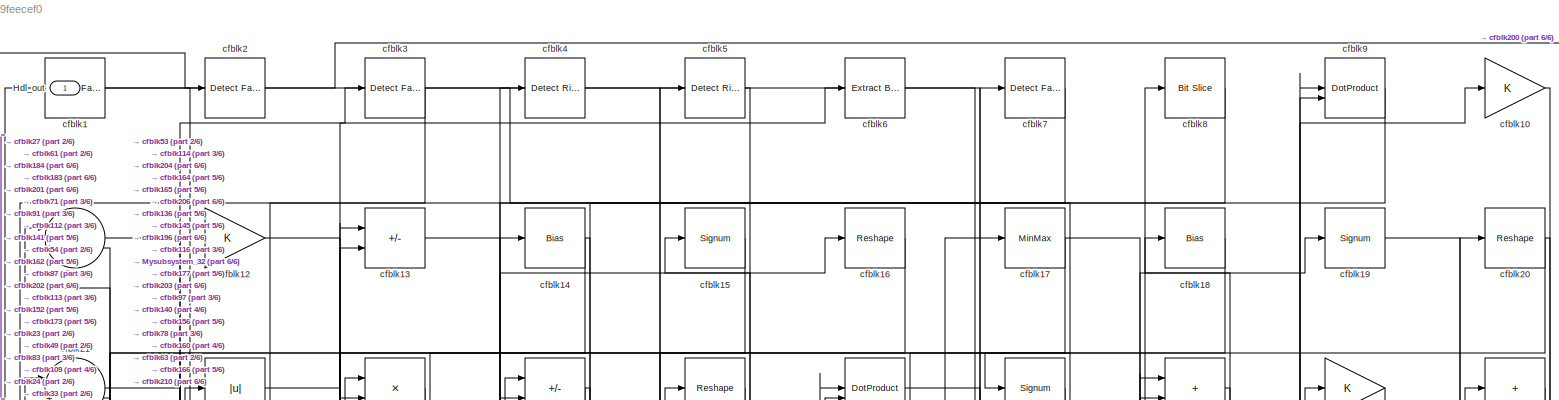
[diagram: root canvas - part 1/6, full width, top band]
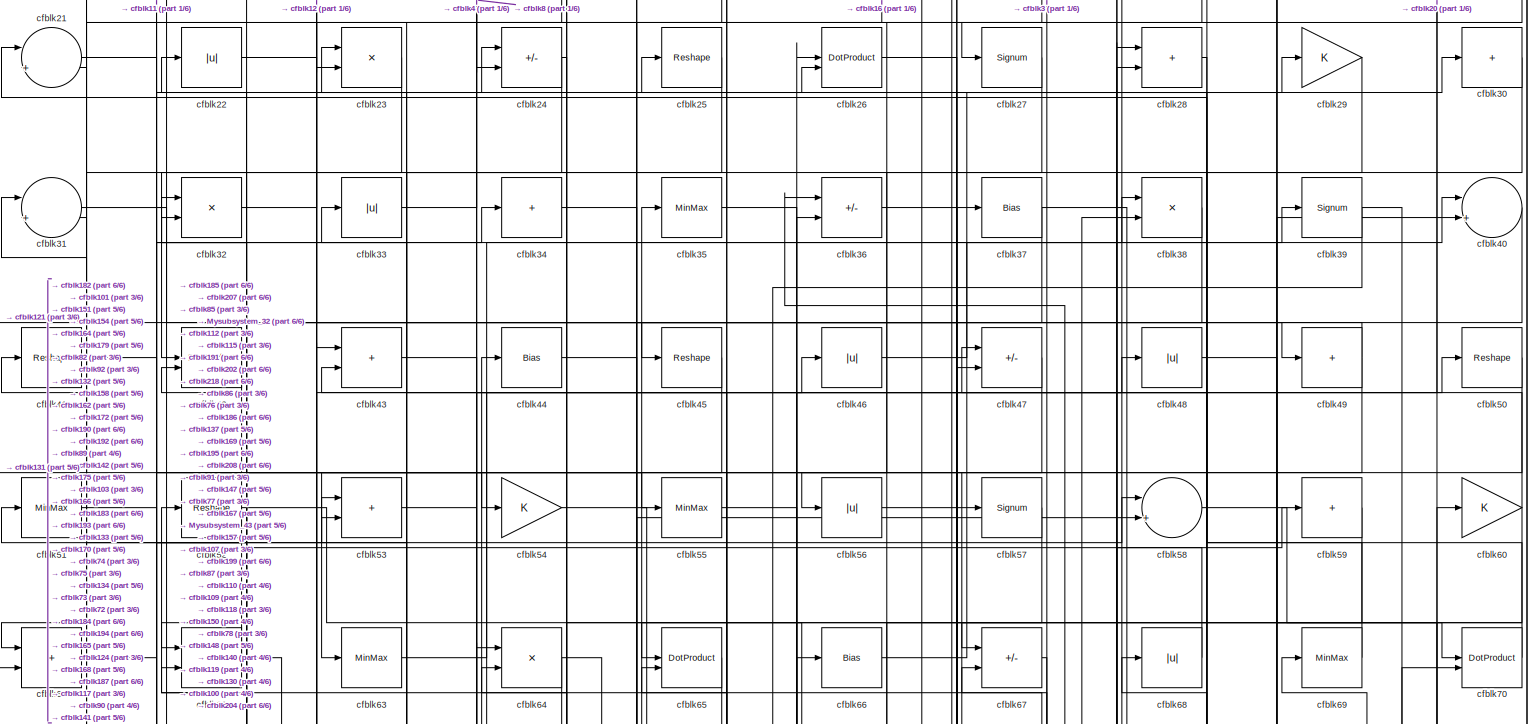
[diagram: root canvas - part 2/6, full width, top band]
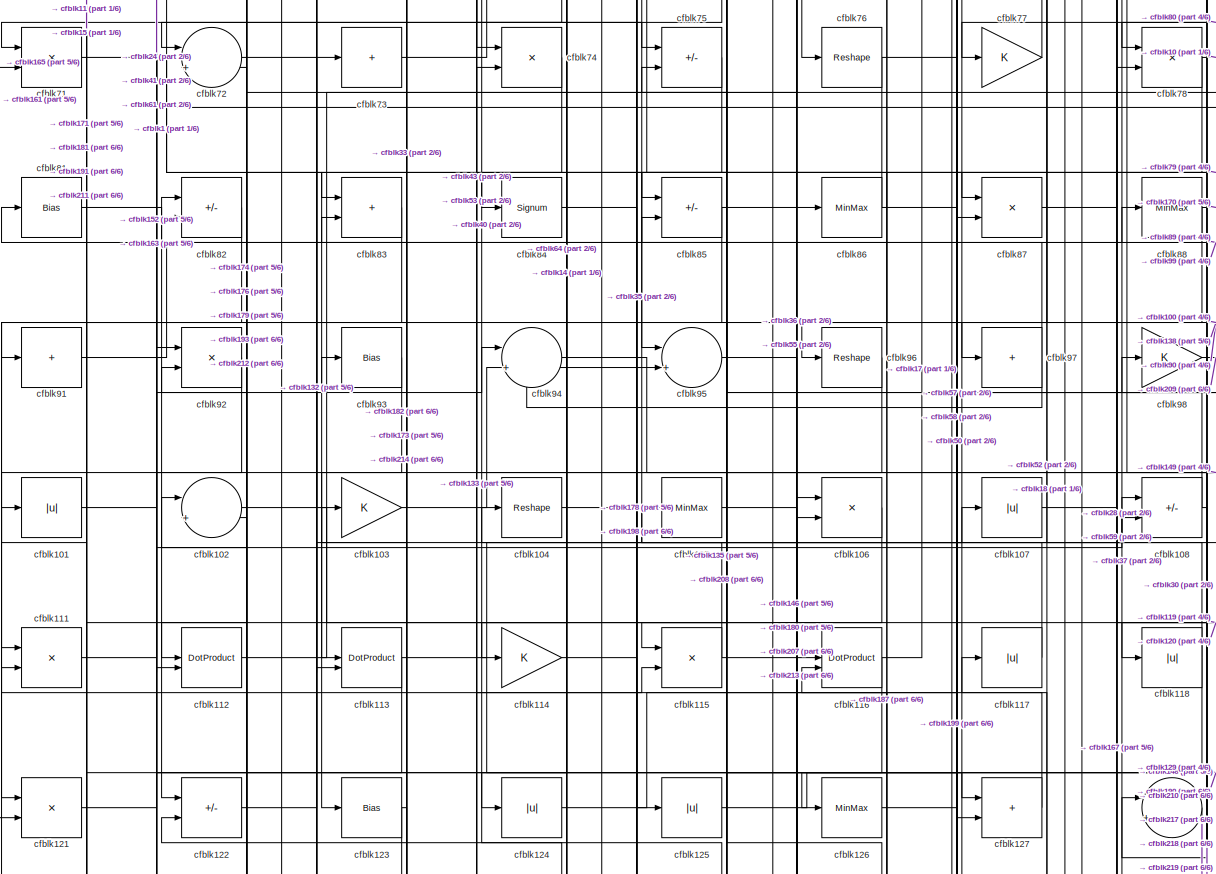
[diagram: root canvas - part 3/6, full width, middle band]
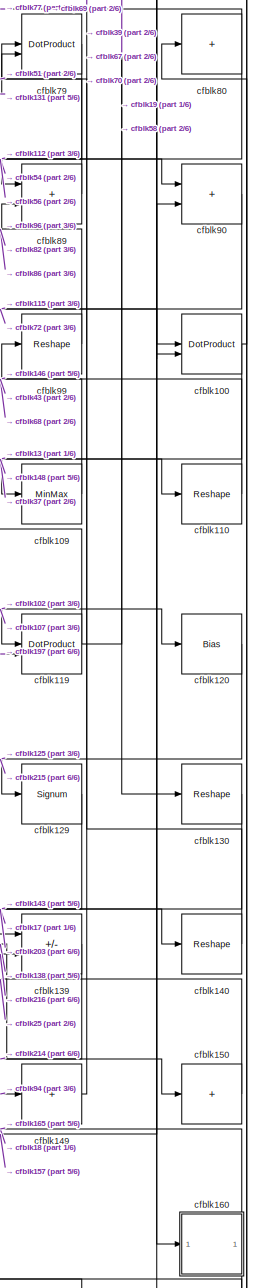
[diagram: root canvas - part 4/6, middle right region]
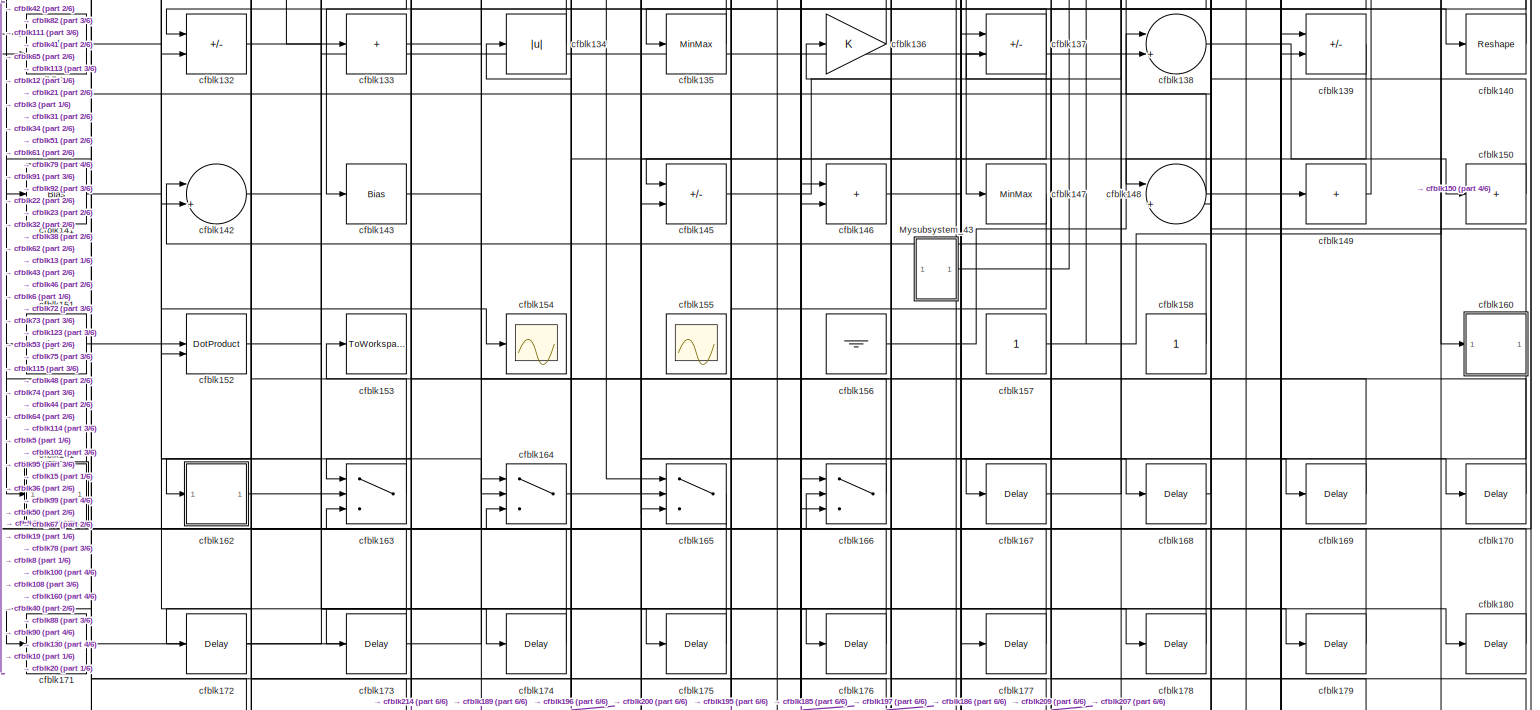
[diagram: root canvas - part 5/6, full width, bottom band]
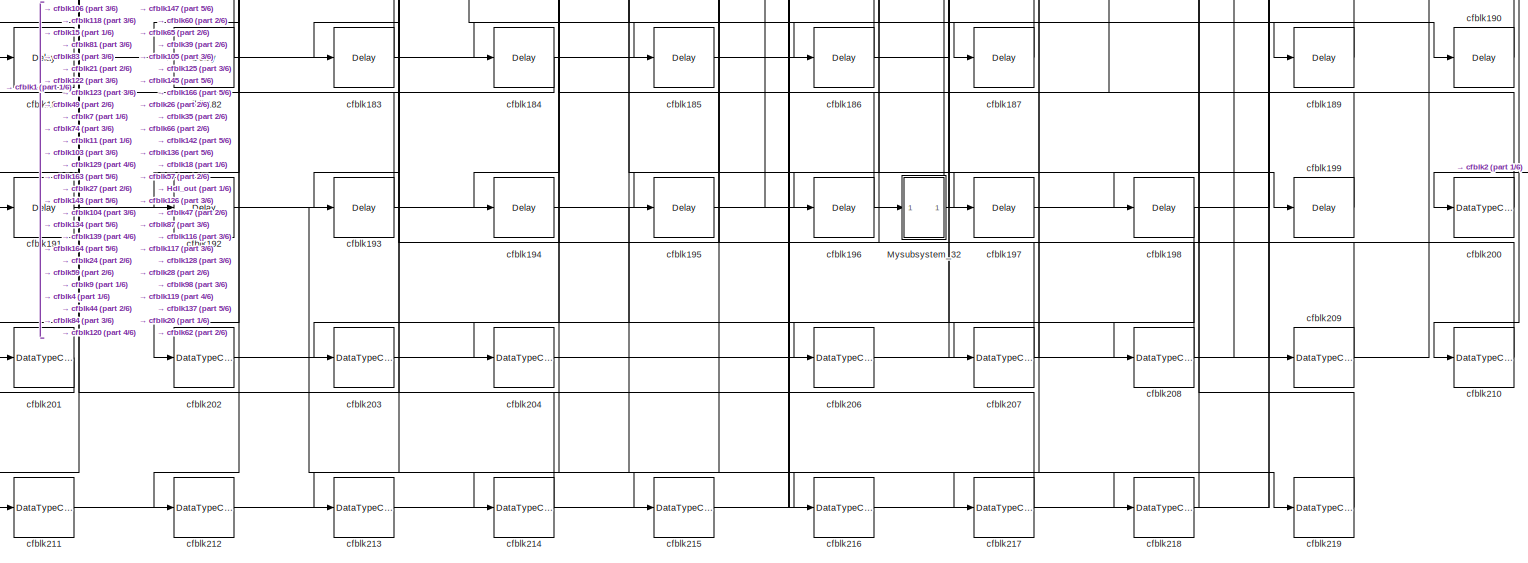
[diagram: root canvas - part 6/6, full width, bottom band]
MODEL slx_e0aa9feecef0
KIND model
CONFIG AbsTol = auto
CONFIG EnableMultiTasking = off
CONFIG FixedStep = auto
CONFIG MaxStep = auto
CONFIG MinStep = auto
CONFIG RelTol = 1e-3
CONFIG SampleTimeConstraint = Unconstrained
CONFIG SolverName = VariableStepAuto
CONFIG StartTime = 0.0
CONFIG StopTime = 10.0
BLOCK [Outport] Hdl_out
  OutDataTypeStr = uint8
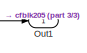
[diagram: Mysubsystem_32 - part 1/3, top right region]
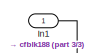
[diagram: Mysubsystem_32 - part 2/3, top right region]
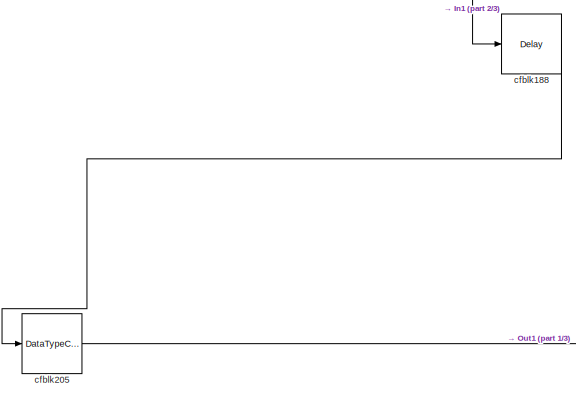
[diagram: Mysubsystem_32 - part 3/3, full width, bottom band]
BLOCK [SubSystem] Mysubsystem_32
  RTWFcnName = Mysubsystem_32
  RTWFcnNameOpts = User specified
  RTWFileNameOpts = Use function name
  RTWSystemCode = Reusable function
  TreatAsAtomicUnit = on
BLOCK [Inport] Mysubsystem_32/In1
BLOCK [Outport] Mysubsystem_32/Out1
BLOCK [Delay] Mysubsystem_32/cfblk188
  InputPortMap = u0
  SampleTime = 1
BLOCK [DataTypeConversion] Mysubsystem_32/cfblk205
  OutDataTypeStr = uint8
  RndMeth = Floor
  SaturateOnIntegerOverflow = off
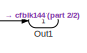
[diagram: Mysubsystem_43 - part 1/2, top center region]
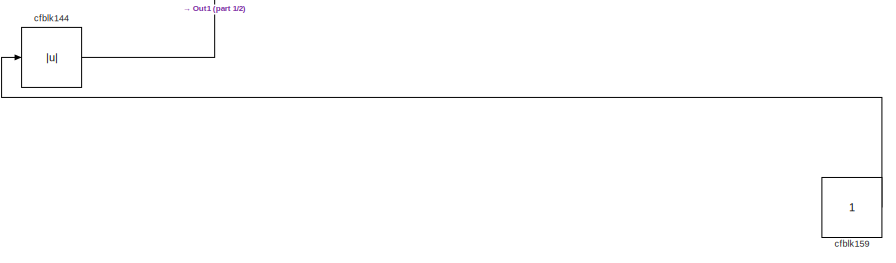
[diagram: Mysubsystem_43 - part 2/2, full width, bottom band]
BLOCK [SubSystem] Mysubsystem_43
  RTWFcnName = Mysubsystem_43
  RTWFcnNameOpts = User specified
  RTWFileNameOpts = Use function name
  RTWSystemCode = Reusable function
  TreatAsAtomicUnit = on
BLOCK [Outport] Mysubsystem_43/Out1
BLOCK [Abs] Mysubsystem_43/cfblk144
  SaturateOnIntegerOverflow = off
BLOCK [Constant] Mysubsystem_43/cfblk159
  SampleTime = -1
BLOCK [Reference] cfblk1  REF=hdlsllib/Logic and Bit
Operations/Detect Fall
Nonpositive
  SourceBlock = hdlsllib/Logic and Bit\nOperations/Detect Fall\nNonpositive
  SourceType = Detect Fall Nonpositive
BLOCK [Gain] cfblk10
  OutDataTypeStr = uint8
BLOCK [DotProduct] cfblk100
  OutDataTypeStr = uint8
BLOCK [Abs] cfblk101
  OutDataTypeStr = uint8
  SaturateOnIntegerOverflow = off
BLOCK [Sum] cfblk102
  Inputs = |++
  OutDataTypeStr = uint8
BLOCK [Gain] cfblk103
  OutDataTypeStr = uint8
BLOCK [Reshape] cfblk104
BLOCK [MinMax] cfblk105
  OutDataTypeStr = uint8
BLOCK [Product] cfblk106
  Inputs = */
  OutDataTypeStr = uint8
  RndMeth = Zero
  SaturateOnIntegerOverflow = on
BLOCK [Abs] cfblk107
  OutDataTypeStr = uint8
  SaturateOnIntegerOverflow = off
BLOCK [Sum] cfblk108
  IconShape = rectangular
  Inputs = +-
  OutDataTypeStr = uint8
BLOCK [MinMax] cfblk109
  OutDataTypeStr = uint8
BLOCK [Sum] cfblk11
  Inputs = |++
  OutDataTypeStr = uint8
BLOCK [Reshape] cfblk110
BLOCK [Product] cfblk111
  Inputs = */
  OutDataTypeStr = uint8
  RndMeth = Zero
  SaturateOnIntegerOverflow = on
BLOCK [DotProduct] cfblk112
  OutDataTypeStr = uint8
BLOCK [DotProduct] cfblk113
  OutDataTypeStr = uint8
BLOCK [Gain] cfblk114
  OutDataTypeStr = uint8
BLOCK [Product] cfblk115
  Inputs = */
  OutDataTypeStr = uint8
  RndMeth = Zero
  SaturateOnIntegerOverflow = on
BLOCK [DotProduct] cfblk116
  OutDataTypeStr = uint8
BLOCK [Abs] cfblk117
  OutDataTypeStr = uint8
  SaturateOnIntegerOverflow = off
BLOCK [Abs] cfblk118
  OutDataTypeStr = uint8
  SaturateOnIntegerOverflow = off
BLOCK [DotProduct] cfblk119
  OutDataTypeStr = uint8
BLOCK [Gain] cfblk12
  OutDataTypeStr = uint8
BLOCK [Bias] cfblk120
  Bias = 0.0
  SaturateOnIntegerOverflow = off
BLOCK [Product] cfblk121
  Inputs = */
  OutDataTypeStr = uint8
  RndMeth = Zero
  SaturateOnIntegerOverflow = on
BLOCK [Sum] cfblk122
  IconShape = rectangular
  Inputs = +-
  OutDataTypeStr = uint8
BLOCK [Bias] cfblk123
  Bias = 0.0
  SaturateOnIntegerOverflow = off
BLOCK [Abs] cfblk124
  OutDataTypeStr = uint8
  SaturateOnIntegerOverflow = off
BLOCK [Abs] cfblk125
  OutDataTypeStr = uint8
  SaturateOnIntegerOverflow = off
BLOCK [MinMax] cfblk126
  OutDataTypeStr = uint8
BLOCK [Sum] cfblk127
  IconShape = rectangular
  OutDataTypeStr = uint8
BLOCK [Sum] cfblk128
  Inputs = |++
  OutDataTypeStr = uint8
BLOCK [Signum] cfblk129
BLOCK [Sum] cfblk13
  IconShape = rectangular
  Inputs = +-
  OutDataTypeStr = uint8
BLOCK [Reshape] cfblk130
BLOCK [Sum] cfblk131
  IconShape = rectangular
  Inputs = +-
  OutDataTypeStr = uint8
BLOCK [Sum] cfblk132
  IconShape = rectangular
  Inputs = +-
  OutDataTypeStr = uint8
BLOCK [Sum] cfblk133
  IconShape = rectangular
  Inputs = +
  OutDataTypeStr = uint8
BLOCK [Abs] cfblk134
  OutDataTypeStr = uint8
  SaturateOnIntegerOverflow = off
BLOCK [MinMax] cfblk135
  OutDataTypeStr = uint8
BLOCK [Gain] cfblk136
  OutDataTypeStr = uint8
BLOCK [Sum] cfblk137
  IconShape = rectangular
  Inputs = +-
  OutDataTypeStr = uint8
BLOCK [Sum] cfblk138
  Inputs = |++
  OutDataTypeStr = uint8
BLOCK [Sum] cfblk139
  IconShape = rectangular
  Inputs = +-
  OutDataTypeStr = uint8
BLOCK [Bias] cfblk14
  Bias = 0.0
  SaturateOnIntegerOverflow = off
BLOCK [Reshape] cfblk140
BLOCK [Bias] cfblk141
  Bias = 0.0
  SaturateOnIntegerOverflow = off
BLOCK [Sum] cfblk142
  Inputs = |++
  OutDataTypeStr = uint8
BLOCK [Bias] cfblk143
  Bias = 0.0
  SaturateOnIntegerOverflow = off
BLOCK [Sum] cfblk145
  IconShape = rectangular
  Inputs = +-
  OutDataTypeStr = uint8
BLOCK [Sum] cfblk146
  IconShape = rectangular
  OutDataTypeStr = uint8
BLOCK [MinMax] cfblk147
  OutDataTypeStr = uint8
BLOCK [Sum] cfblk148
  Inputs = |++
  OutDataTypeStr = uint8
BLOCK [Sum] cfblk149
  IconShape = rectangular
  Inputs = +
  OutDataTypeStr = uint8
BLOCK [Signum] cfblk15
BLOCK [Sum] cfblk150
  IconShape = rectangular
  Inputs = +
  OutDataTypeStr = uint8
BLOCK [Signum] cfblk151
BLOCK [DotProduct] cfblk152
  OutDataTypeStr = uint8
BLOCK [ToWorkspace] cfblk153
  MaxDataPoints = inf
  SampleTime = -1
  SaveFormat = Timeseries
  VariableName = simout
BLOCK [Scope] cfblk154
  Floating = off
  NumInputPorts = 1
  ScopeSpecificationString = Simulink.scopes.TimeScopeBlockCfg('CurrentConfiguration', extmgr.ConfigurationSet(extmgr.Configuration('Core','General UI',true),extmgr.Configuration('Core','Source UI',true),extmgr.Configuration('Sources','WiredSimulink',true,'DataLoggingVariableName','ScopeData2','DataLoggingSaveFormat','Array','DataLoggingLimitDataPoints',true,'DataLoggingDecimation','1'),extmgr.Configuration('Visuals','Time Do...<+868ch>
BLOCK [Scope] cfblk155
  Floating = on
  NumInputPorts = 1
  ScopeSpecificationString = Simulink.scopes.TimeScopeBlockCfg('CurrentConfiguration', extmgr.ConfigurationSet(extmgr.Configuration('Core','General UI',true,'FigureColor',[0.156862745098039 0.156862745098039 0.156862745098039]),extmgr.Configuration('Core','Source UI',true),extmgr.Configuration('Sources','WiredSimulink',true,'DataLoggingVariableName','ScopeData1','DataLoggingSaveFormat','StructureWithTime','DataLoggingLimitDat...<+2713ch>
BLOCK [Ground] cfblk156
BLOCK [Constant] cfblk157
  OutDataTypeStr = uint8
  SampleTime = -1
BLOCK [Constant] cfblk158
  OutDataTypeStr = uint8
  SampleTime = -1
BLOCK [Reshape] cfblk16
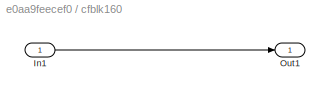
BLOCK [SubSystem] cfblk160
  LibrarySourceBlock = hdlsllib/Ports &\nSubsystems/Subsystem
BLOCK [Inport] cfblk160/In1
BLOCK [Outport] cfblk160/Out1
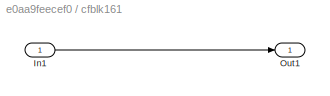
BLOCK [SubSystem] cfblk161
  LibrarySourceBlock = hdlsllib/Ports &\nSubsystems/Subsystem
BLOCK [Inport] cfblk161/In1
BLOCK [Outport] cfblk161/Out1
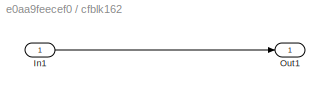
BLOCK [SubSystem] cfblk162
  LibrarySourceBlock = hdlsllib/Ports &\nSubsystems/Subsystem
BLOCK [Inport] cfblk162/In1
BLOCK [Outport] cfblk162/Out1
BLOCK [Switch] cfblk163
  InputSameDT = off
  OutDataTypeStr = uint8
  SaturateOnIntegerOverflow = off
BLOCK [Switch] cfblk164
  InputSameDT = off
  OutDataTypeStr = uint8
  SaturateOnIntegerOverflow = off
BLOCK [Switch] cfblk165
  InputSameDT = off
  OutDataTypeStr = uint8
  SaturateOnIntegerOverflow = off
BLOCK [Switch] cfblk166
  InputSameDT = off
  OutDataTypeStr = uint8
  SaturateOnIntegerOverflow = off
BLOCK [Delay] cfblk167
  InputPortMap = u0
  SampleTime = 1
BLOCK [Delay] cfblk168
  InputPortMap = u0
  SampleTime = 1
BLOCK [Delay] cfblk169
  InputPortMap = u0
  SampleTime = 1
BLOCK [MinMax] cfblk17
  OutDataTypeStr = uint8
BLOCK [Delay] cfblk170
  InputPortMap = u0
  SampleTime = 1
BLOCK [Delay] cfblk171
  InputPortMap = u0
  SampleTime = 1
BLOCK [Delay] cfblk172
  InputPortMap = u0
  SampleTime = 1
BLOCK [Delay] cfblk173
  InputPortMap = u0
  SampleTime = 1
BLOCK [Delay] cfblk174
  InputPortMap = u0
  SampleTime = 1
BLOCK [Delay] cfblk175
  InputPortMap = u0
  SampleTime = 1
BLOCK [Delay] cfblk176
  InputPortMap = u0
  SampleTime = 1
BLOCK [Delay] cfblk177
  InputPortMap = u0
  SampleTime = 1
BLOCK [Delay] cfblk178
  InputPortMap = u0
  SampleTime = 1
BLOCK [Delay] cfblk179
  InputPortMap = u0
  SampleTime = 1
BLOCK [Bias] cfblk18
  Bias = 0.0
  SaturateOnIntegerOverflow = off
BLOCK [Delay] cfblk180
  InputPortMap = u0
  SampleTime = 1
BLOCK [Delay] cfblk181
  InputPortMap = u0
  SampleTime = 1
BLOCK [Delay] cfblk182
  InputPortMap = u0
  SampleTime = 1
BLOCK [Delay] cfblk183
  InputPortMap = u0
  SampleTime = 1
BLOCK [Delay] cfblk184
  InputPortMap = u0
  SampleTime = 1
BLOCK [Delay] cfblk185
  InputPortMap = u0
  SampleTime = 1
BLOCK [Delay] cfblk186
  InputPortMap = u0
  SampleTime = 1
BLOCK [Delay] cfblk187
  InputPortMap = u0
  SampleTime = 1
BLOCK [Delay] cfblk189
  InputPortMap = u0
  SampleTime = 1
BLOCK [Signum] cfblk19
BLOCK [Delay] cfblk190
  InputPortMap = u0
  SampleTime = 1
BLOCK [Delay] cfblk191
  InputPortMap = u0
  SampleTime = 1
BLOCK [Delay] cfblk192
  InputPortMap = u0
  SampleTime = 1
BLOCK [Delay] cfblk193
  InputPortMap = u0
  SampleTime = 1
BLOCK [Delay] cfblk194
  InputPortMap = u0
  SampleTime = 1
BLOCK [Delay] cfblk195
  InputPortMap = u0
  SampleTime = 1
BLOCK [Delay] cfblk196
  InputPortMap = u0
  SampleTime = 1
BLOCK [Delay] cfblk197
  InputPortMap = u0
  SampleTime = 1
BLOCK [Delay] cfblk198
  InputPortMap = u0
  SampleTime = 1
BLOCK [Delay] cfblk199
  InputPortMap = u0
  SampleTime = 1
BLOCK [Reference] cfblk2  REF=hdlsllib/Logic and Bit
Operations/Detect Fall
Nonpositive
  SourceBlock = hdlsllib/Logic and Bit\nOperations/Detect Fall\nNonpositive
  SourceType = Detect Fall Nonpositive
BLOCK [Reshape] cfblk20
BLOCK [DataTypeConversion] cfblk200
  OutDataTypeStr = uint8
  RndMeth = Floor
  SaturateOnIntegerOverflow = off
BLOCK [DataTypeConversion] cfblk201
  OutDataTypeStr = uint8
  RndMeth = Floor
  SaturateOnIntegerOverflow = off
BLOCK [DataTypeConversion] cfblk202
  OutDataTypeStr = uint8
  RndMeth = Floor
  SaturateOnIntegerOverflow = off
BLOCK [DataTypeConversion] cfblk203
  OutDataTypeStr = uint8
  RndMeth = Floor
  SaturateOnIntegerOverflow = off
BLOCK [DataTypeConversion] cfblk204
  OutDataTypeStr = uint8
  RndMeth = Floor
  SaturateOnIntegerOverflow = off
BLOCK [DataTypeConversion] cfblk206
  OutDataTypeStr = uint8
  RndMeth = Floor
  SaturateOnIntegerOverflow = off
BLOCK [DataTypeConversion] cfblk207
  OutDataTypeStr = uint8
  RndMeth = Floor
  SaturateOnIntegerOverflow = off
BLOCK [DataTypeConversion] cfblk208
  OutDataTypeStr = uint8
  RndMeth = Floor
  SaturateOnIntegerOverflow = off
BLOCK [DataTypeConversion] cfblk209
  OutDataTypeStr = uint8
  RndMeth = Floor
  SaturateOnIntegerOverflow = off
BLOCK [Sum] cfblk21
  Inputs = |++
  OutDataTypeStr = uint8
BLOCK [DataTypeConversion] cfblk210
  OutDataTypeStr = uint8
  RndMeth = Floor
  SaturateOnIntegerOverflow = off
BLOCK [DataTypeConversion] cfblk211
  OutDataTypeStr = uint8
  RndMeth = Floor
  SaturateOnIntegerOverflow = off
BLOCK [DataTypeConversion] cfblk212
  OutDataTypeStr = uint8
  RndMeth = Floor
  SaturateOnIntegerOverflow = off
BLOCK [DataTypeConversion] cfblk213
  OutDataTypeStr = uint8
  RndMeth = Floor
  SaturateOnIntegerOverflow = off
BLOCK [DataTypeConversion] cfblk214
  OutDataTypeStr = uint8
  RndMeth = Floor
  SaturateOnIntegerOverflow = off
BLOCK [DataTypeConversion] cfblk215
  OutDataTypeStr = uint8
  RndMeth = Floor
  SaturateOnIntegerOverflow = off
BLOCK [DataTypeConversion] cfblk216
  OutDataTypeStr = uint8
  RndMeth = Floor
  SaturateOnIntegerOverflow = off
BLOCK [DataTypeConversion] cfblk217
  OutDataTypeStr = uint8
  RndMeth = Floor
  SaturateOnIntegerOverflow = off
BLOCK [DataTypeConversion] cfblk218
  OutDataTypeStr = uint8
  RndMeth = Floor
  SaturateOnIntegerOverflow = off
BLOCK [DataTypeConversion] cfblk219
  OutDataTypeStr = uint8
  RndMeth = Floor
  SaturateOnIntegerOverflow = off
BLOCK [Abs] cfblk22
  OutDataTypeStr = uint8
  SaturateOnIntegerOverflow = off
BLOCK [Product] cfblk23
  Inputs = */
  OutDataTypeStr = uint8
  RndMeth = Zero
  SaturateOnIntegerOverflow = on
BLOCK [Sum] cfblk24
  IconShape = rectangular
  Inputs = +-
  OutDataTypeStr = uint8
BLOCK [Reshape] cfblk25
BLOCK [DotProduct] cfblk26
  OutDataTypeStr = uint8
BLOCK [Signum] cfblk27
BLOCK [Sum] cfblk28
  IconShape = rectangular
  OutDataTypeStr = uint8
BLOCK [Gain] cfblk29
  OutDataTypeStr = uint8
BLOCK [Reference] cfblk3  REF=hdlsllib/Logic and Bit
Operations/Detect Fall
Nonpositive
  SourceBlock = hdlsllib/Logic and Bit\nOperations/Detect Fall\nNonpositive
  SourceType = Detect Fall Nonpositive
BLOCK [Sum] cfblk30
  IconShape = rectangular
  Inputs = +
  OutDataTypeStr = uint8
BLOCK [Sum] cfblk31
  Inputs = |++
  OutDataTypeStr = uint8
BLOCK [Product] cfblk32
  Inputs = */
  OutDataTypeStr = uint8
  RndMeth = Zero
  SaturateOnIntegerOverflow = on
BLOCK [Abs] cfblk33
  OutDataTypeStr = uint8
  SaturateOnIntegerOverflow = off
BLOCK [Sum] cfblk34
  IconShape = rectangular
  Inputs = +
  OutDataTypeStr = uint8
BLOCK [MinMax] cfblk35
  OutDataTypeStr = uint8
BLOCK [Sum] cfblk36
  IconShape = rectangular
  Inputs = +-
  OutDataTypeStr = uint8
BLOCK [Bias] cfblk37
  Bias = 0.0
  SaturateOnIntegerOverflow = off
BLOCK [Product] cfblk38
  Inputs = */
  OutDataTypeStr = uint8
  RndMeth = Zero
  SaturateOnIntegerOverflow = on
BLOCK [Signum] cfblk39
BLOCK [Reference] cfblk4  REF=hdlsllib/Logic and Bit
Operations/Detect Rise
Positive
  SourceBlock = hdlsllib/Logic and Bit\nOperations/Detect Rise\nPositive
  SourceType = Detect Rise Positive
BLOCK [Sum] cfblk40
  Inputs = |++
  OutDataTypeStr = uint8
BLOCK [Reshape] cfblk41
BLOCK [DotProduct] cfblk42
  OutDataTypeStr = uint8
BLOCK [Sum] cfblk43
  IconShape = rectangular
  OutDataTypeStr = uint8
BLOCK [Bias] cfblk44
  Bias = 0.0
  SaturateOnIntegerOverflow = off
BLOCK [Reshape] cfblk45
BLOCK [Abs] cfblk46
  OutDataTypeStr = uint8
  SaturateOnIntegerOverflow = off
BLOCK [Sum] cfblk47
  IconShape = rectangular
  Inputs = +-
  OutDataTypeStr = uint8
BLOCK [Abs] cfblk48
  OutDataTypeStr = uint8
  SaturateOnIntegerOverflow = off
BLOCK [Sum] cfblk49
  IconShape = rectangular
  Inputs = +
  OutDataTypeStr = uint8
BLOCK [Reference] cfblk5  REF=hdlsllib/Logic and Bit
Operations/Detect Rise
Nonnegative
  SourceBlock = hdlsllib/Logic and Bit\nOperations/Detect Rise\nNonnegative
  SourceType = Detect Rise Nonnegative
BLOCK [Reshape] cfblk50
BLOCK [MinMax] cfblk51
  OutDataTypeStr = uint8
BLOCK [Reshape] cfblk52
BLOCK [Sum] cfblk53
  IconShape = rectangular
  OutDataTypeStr = uint8
BLOCK [Gain] cfblk54
  OutDataTypeStr = uint8
BLOCK [MinMax] cfblk55
  OutDataTypeStr = uint8
BLOCK [Abs] cfblk56
  OutDataTypeStr = uint8
  SaturateOnIntegerOverflow = off
BLOCK [Signum] cfblk57
BLOCK [Sum] cfblk58
  Inputs = |++
  OutDataTypeStr = uint8
BLOCK [Sum] cfblk59
  IconShape = rectangular
  Inputs = +
  OutDataTypeStr = uint8
BLOCK [Reference] cfblk6  REF=simulink/Logic and Bit
Operations/Extract Bits
  LibrarySourceBlock = hdlsllib/Logic and Bit\nOperations/Extract Bits
  SourceBlock = simulink/Logic and Bit\nOperations/Extract Bits
  SourceType = Extract Bits
BLOCK [Gain] cfblk60
  OutDataTypeStr = uint8
BLOCK [Sum] cfblk61
  IconShape = rectangular
  OutDataTypeStr = uint8
BLOCK [Sum] cfblk62
  IconShape = rectangular
  OutDataTypeStr = uint8
BLOCK [MinMax] cfblk63
  OutDataTypeStr = uint8
BLOCK [Product] cfblk64
  Inputs = */
  OutDataTypeStr = uint8
  RndMeth = Zero
  SaturateOnIntegerOverflow = on
BLOCK [DotProduct] cfblk65
  OutDataTypeStr = uint8
BLOCK [Bias] cfblk66
  Bias = 0.0
  SaturateOnIntegerOverflow = off
BLOCK [Sum] cfblk67
  IconShape = rectangular
  Inputs = +-
  OutDataTypeStr = uint8
BLOCK [Abs] cfblk68
  OutDataTypeStr = uint8
  SaturateOnIntegerOverflow = off
BLOCK [MinMax] cfblk69
  OutDataTypeStr = uint8
BLOCK [Reference] cfblk7  REF=hdlsllib/Logic and Bit
Operations/Detect Fall
Negative
  SourceBlock = hdlsllib/Logic and Bit\nOperations/Detect Fall\nNegative
  SourceType = Detect Fall Negative
BLOCK [DotProduct] cfblk70
  OutDataTypeStr = uint8
BLOCK [Product] cfblk71
  Inputs = */
  OutDataTypeStr = uint8
  RndMeth = Zero
  SaturateOnIntegerOverflow = on
BLOCK [Sum] cfblk72
  Inputs = |++
  OutDataTypeStr = uint8
BLOCK [Sum] cfblk73
  IconShape = rectangular
  Inputs = +
  OutDataTypeStr = uint8
BLOCK [Product] cfblk74
  Inputs = */
  OutDataTypeStr = uint8
  RndMeth = Zero
  SaturateOnIntegerOverflow = on
BLOCK [Sum] cfblk75
  IconShape = rectangular
  Inputs = +-
  OutDataTypeStr = uint8
BLOCK [Reshape] cfblk76
BLOCK [Gain] cfblk77
  OutDataTypeStr = uint8
BLOCK [Product] cfblk78
  Inputs = */
  OutDataTypeStr = uint8
  RndMeth = Zero
  SaturateOnIntegerOverflow = on
BLOCK [DotProduct] cfblk79
  OutDataTypeStr = uint8
BLOCK [Reference] cfblk8  REF=hdlsllib/Logic and Bit
Operations/Bit Slice
  SourceBlock = hdlsllib/Logic and Bit\nOperations/Bit Slice
  SourceType = Bit Slice
BLOCK [Sum] cfblk80
  IconShape = rectangular
  Inputs = +
  OutDataTypeStr = uint8
BLOCK [Bias] cfblk81
  Bias = 0.0
  SaturateOnIntegerOverflow = off
BLOCK [Sum] cfblk82
  IconShape = rectangular
  Inputs = +-
  OutDataTypeStr = uint8
BLOCK [Sum] cfblk83
  IconShape = rectangular
  OutDataTypeStr = uint8
BLOCK [Signum] cfblk84
BLOCK [Sum] cfblk85
  IconShape = rectangular
  Inputs = +-
  OutDataTypeStr = uint8
BLOCK [MinMax] cfblk86
  OutDataTypeStr = uint8
BLOCK [Product] cfblk87
  Inputs = */
  OutDataTypeStr = uint8
  RndMeth = Zero
  SaturateOnIntegerOverflow = on
BLOCK [MinMax] cfblk88
  OutDataTypeStr = uint8
BLOCK [Sum] cfblk89
  IconShape = rectangular
  OutDataTypeStr = uint8
BLOCK [DotProduct] cfblk9
  OutDataTypeStr = uint8
BLOCK [Sum] cfblk90
  IconShape = rectangular
  OutDataTypeStr = uint8
BLOCK [Sum] cfblk91
  IconShape = rectangular
  Inputs = +
  OutDataTypeStr = uint8
BLOCK [Product] cfblk92
  Inputs = */
  OutDataTypeStr = uint8
  RndMeth = Zero
  SaturateOnIntegerOverflow = on
BLOCK [Bias] cfblk93
  Bias = 0.0
  SaturateOnIntegerOverflow = off
BLOCK [Sum] cfblk94
  Inputs = |++
  OutDataTypeStr = uint8
BLOCK [Sum] cfblk95
  Inputs = |++
  OutDataTypeStr = uint8
BLOCK [Reshape] cfblk96
BLOCK [Sum] cfblk97
  IconShape = rectangular
  Inputs = +
  OutDataTypeStr = uint8
BLOCK [Gain] cfblk98
  OutDataTypeStr = uint8
BLOCK [Reshape] cfblk99
LINE Mysubsystem_32/In1:1 -> Mysubsystem_32/cfblk188:1
LINE Mysubsystem_32/cfblk188:1 -> Mysubsystem_32/cfblk205:1
LINE Mysubsystem_32/cfblk205:1 -> Mysubsystem_32/Out1:1
NET Mysubsystem_32:1 -> Hdl_out:1, cfblk9:1
LINE Mysubsystem_43/cfblk144:1 -> Mysubsystem_43/Out1:1
LINE Mysubsystem_43/cfblk159:1 -> Mysubsystem_43/cfblk144:1
LINE Mysubsystem_43:1 -> cfblk36:1
NET cfblk100:1 -> cfblk148:2, cfblk80:1
LINE cfblk101:1 -> cfblk24:1
NET cfblk102:1 -> cfblk119:1, cfblk94:1
NET cfblk103:1 -> cfblk33:1, cfblk95:2
LINE cfblk104:1 -> cfblk125:1
LINE cfblk105:1 -> cfblk207:1
LINE cfblk106:1 -> cfblk211:1
NET cfblk107:1 -> cfblk120:1, cfblk59:1
NET cfblk108:1 -> cfblk148:1, cfblk75:2
LINE cfblk109:1 -> cfblk68:1
LINE cfblk10:1 -> cfblk166:2
LINE cfblk110:1 -> cfblk43:2
LINE cfblk111:1 -> cfblk88:1
LINE cfblk112:1 -> cfblk36:2
NET cfblk113:1 -> cfblk108:1, cfblk132:2, cfblk146:1
LINE cfblk114:1 -> cfblk178:1
NET cfblk115:1 -> cfblk50:1, cfblk64:2
NET cfblk116:1 -> cfblk126:1, cfblk17:1
LINE cfblk117:1 -> cfblk35:1
NET cfblk118:1 -> cfblk181:1, cfblk85:2
NET cfblk119:1 -> cfblk67:2, cfblk70:2
LINE cfblk11:1 -> cfblk54:1
LINE cfblk120:1 -> cfblk215:1
NET cfblk121:1 -> cfblk108:2, cfblk93:1
LINE cfblk122:1 -> cfblk107:1
NET cfblk123:1 -> cfblk163:1, cfblk182:1
NET cfblk124:1 -> cfblk37:1, cfblk58:2
NET cfblk125:1 -> cfblk129:1, cfblk190:1
LINE cfblk126:1 -> cfblk199:1
LINE cfblk127:1 -> cfblk101:1
LINE cfblk128:1 -> cfblk217:1
LINE cfblk129:1 -> cfblk203:1
LINE cfblk12:1 -> cfblk49:1
LINE cfblk130:1 -> cfblk143:1
NET cfblk131:1 -> cfblk34:1, cfblk41:1, cfblk79:2
NET cfblk132:1 -> cfblk174:1, cfblk73:1
NET cfblk133:1 -> cfblk115:2, cfblk48:1
LINE cfblk134:1 -> cfblk44:1
LINE cfblk135:1 -> cfblk102:1
LINE cfblk136:1 -> cfblk15:1
NET cfblk137:1 -> cfblk135:1, cfblk145:2, cfblk146:2
LINE cfblk138:1 -> cfblk150:1
LINE cfblk139:1 -> cfblk214:1
NET cfblk13:1 -> cfblk109:1, cfblk14:1
LINE cfblk140:1 -> cfblk69:1
NET cfblk141:1 -> cfblk12:1, cfblk3:1
LINE cfblk142:1 -> cfblk46:1
LINE cfblk143:1 -> cfblk189:1
NET cfblk145:1 -> cfblk197:1, cfblk19:1
LINE cfblk146:1 -> cfblk99:1
LINE cfblk147:1 -> cfblk195:1
NET cfblk148:1 -> cfblk111:2, cfblk40:2
LINE cfblk149:1 -> cfblk79:1
NET cfblk14:1 -> cfblk112:2, cfblk113:2, cfblk114:1, cfblk71:1
LINE cfblk150:1 -> cfblk25:1
LINE cfblk151:1 -> cfblk38:1
LINE cfblk152:1 -> cfblk13:2
LINE cfblk156:1 -> cfblk8:1
NET cfblk157:1 -> cfblk38:2, cfblk90:2
LINE cfblk158:1 -> cfblk32:2
NET cfblk15:1 -> cfblk201:1, cfblk91:1
LINE cfblk160/In1:1 -> cfblk160/Out1:1
NET cfblk160:1 -> cfblk165:3, cfblk18:1
LINE cfblk161/In1:1 -> cfblk161/Out1:1
LINE cfblk161:1 -> cfblk151:1
LINE cfblk162/In1:1 -> cfblk162/Out1:1
NET cfblk162:1 -> cfblk176:1, cfblk22:1, cfblk6:1
LINE cfblk163:1 -> cfblk153:1
LINE cfblk164:1 -> cfblk5:1
LINE cfblk165:1 -> cfblk71:2
LINE cfblk166:1 -> cfblk53:1
LINE cfblk167:1 -> cfblk78:2
LINE cfblk168:1 -> cfblk138:1
LINE cfblk169:1 -> cfblk42:2
LINE cfblk16:1 -> cfblk23:2
LINE cfblk170:1 -> cfblk64:1
LINE cfblk171:1 -> cfblk74:2
LINE cfblk172:1 -> cfblk43:1
LINE cfblk173:1 -> cfblk13:1
LINE cfblk174:1 -> cfblk72:2
LINE cfblk175:1 -> cfblk31:1
LINE cfblk176:1 -> cfblk92:2
LINE cfblk177:1 -> cfblk152:1
LINE cfblk178:1 -> cfblk131:1
LINE cfblk179:1 -> cfblk102:2
NET cfblk17:1 -> cfblk140:1, cfblk83:1
LINE cfblk180:1 -> cfblk164:1
LINE cfblk181:1 -> cfblk87:2
LINE cfblk182:1 -> cfblk21:2
LINE cfblk183:1 -> cfblk11:1
LINE cfblk184:1 -> cfblk1:1
LINE cfblk185:1 -> cfblk166:3
LINE cfblk186:1 -> cfblk142:1
LINE cfblk187:1 -> cfblk116:2
LINE cfblk189:1 -> cfblk137:2
NET cfblk18:1 -> cfblk196:1, cfblk97:1
LINE cfblk190:1 -> cfblk62:2
LINE cfblk191:1 -> cfblk26:1
LINE cfblk192:1 -> cfblk216:1
LINE cfblk193:1 -> cfblk122:2
LINE cfblk194:1 -> cfblk219:1
LINE cfblk195:1 -> cfblk47:2
LINE cfblk196:1 -> cfblk164:3
LINE cfblk197:1 -> cfblk119:2
LINE cfblk198:1 -> cfblk213:1
LINE cfblk199:1 -> cfblk28:1
LINE cfblk19:1 -> cfblk160:1
LINE cfblk1:1 -> cfblk87:1
LINE cfblk200:1 -> cfblk134:1
LINE cfblk201:1 -> cfblk2:1
LINE cfblk202:1 -> cfblk66:1
LINE cfblk203:1 -> cfblk7:1
LINE cfblk204:1 -> cfblk60:1
LINE cfblk206:1 -> cfblk9:2
NET cfblk207:1 -> cfblk117:1, cfblk163:3, cfblk65:2
LINE cfblk208:1 -> cfblk105:1
NET cfblk209:1 -> cfblk104:1, cfblk136:1, cfblk83:2
NET cfblk20:1 -> cfblk165:2, cfblk210:1
LINE cfblk210:1 -> cfblk98:1
LINE cfblk211:1 -> cfblk116:1
LINE cfblk212:1 -> cfblk106:1
LINE cfblk213:1 -> cfblk106:2
NET cfblk214:1 -> cfblk103:1, cfblk166:1
LINE cfblk215:1 -> cfblk139:1
LINE cfblk216:1 -> cfblk139:2
LINE cfblk217:1 -> cfblk81:1
LINE cfblk218:1 -> cfblk128:1
LINE cfblk219:1 -> cfblk128:2
NET cfblk21:1 -> cfblk142:2, cfblk55:1
LINE cfblk22:1 -> cfblk175:1
NET cfblk23:1 -> cfblk132:1, cfblk61:1
NET cfblk24:1 -> cfblk183:1, cfblk184:1
LINE cfblk25:1 -> cfblk42:1
LINE cfblk26:1 -> cfblk208:1
LINE cfblk27:1 -> cfblk193:1
LINE cfblk28:1 -> cfblk78:1
LINE cfblk29:1 -> cfblk56:1
LINE cfblk2:1 -> cfblk200:1
LINE cfblk30:1 -> cfblk118:1
NET cfblk31:1 -> cfblk137:1, cfblk154:1
LINE cfblk32:1 -> cfblk26:2
LINE cfblk33:1 -> cfblk16:1
LINE cfblk34:1 -> cfblk168:1
LINE cfblk35:1 -> cfblk218:1
LINE cfblk36:1 -> cfblk169:1
NET cfblk37:1 -> cfblk110:1, cfblk121:2
LINE cfblk38:1 -> cfblk162:1
NET cfblk39:1 -> Mysubsystem_32:1, cfblk130:1
NET cfblk3:1 -> cfblk27:1, cfblk61:2
LINE cfblk40:1 -> cfblk172:1
LINE cfblk41:1 -> cfblk92:1
LINE cfblk42:1 -> cfblk131:2
LINE cfblk43:1 -> cfblk74:1
LINE cfblk44:1 -> cfblk187:1
LINE cfblk45:1 -> cfblk63:1
LINE cfblk46:1 -> cfblk29:1
LINE cfblk47:1 -> cfblk62:1
LINE cfblk48:1 -> cfblk70:1
NET cfblk49:1 -> cfblk192:1, cfblk45:1
LINE cfblk4:1 -> cfblk206:1
NET cfblk50:1 -> cfblk147:1, cfblk85:1
NET cfblk51:1 -> cfblk164:2, cfblk53:2
LINE cfblk52:1 -> cfblk76:1
NET cfblk53:1 -> cfblk4:1, cfblk75:1
LINE cfblk54:1 -> cfblk90:1
LINE cfblk55:1 -> cfblk86:1
LINE cfblk56:1 -> cfblk89:1
LINE cfblk57:1 -> cfblk186:1
LINE cfblk58:1 -> cfblk100:1
LINE cfblk59:1 -> cfblk194:1
LINE cfblk5:1 -> cfblk145:1
NET cfblk60:1 -> cfblk185:1, cfblk23:1, cfblk65:1
NET cfblk61:1 -> cfblk179:1, cfblk58:1, cfblk82:2
NET cfblk62:1 -> cfblk133:1, cfblk31:2
LINE cfblk63:1 -> cfblk20:1
NET cfblk64:1 -> cfblk165:1, cfblk72:1
LINE cfblk65:1 -> cfblk141:1
LINE cfblk66:1 -> cfblk39:1
LINE cfblk67:1 -> cfblk167:1
LINE cfblk68:1 -> cfblk32:1
LINE cfblk69:1 -> cfblk47:1
LINE cfblk6:1 -> cfblk177:1
NET cfblk70:1 -> cfblk21:1, cfblk67:1
LINE cfblk71:1 -> cfblk113:1
NET cfblk72:1 -> cfblk100:2, cfblk138:2
LINE cfblk73:1 -> cfblk40:1
LINE cfblk74:1 -> cfblk212:1
LINE cfblk75:1 -> cfblk173:1
NET cfblk76:1 -> cfblk30:1, cfblk95:1
LINE cfblk77:1 -> cfblk52:1
NET cfblk78:1 -> cfblk10:1, cfblk124:1
LINE cfblk79:1 -> cfblk112:1
LINE cfblk7:1 -> cfblk202:1
NET cfblk80:1 -> cfblk77:1, cfblk96:1
NET cfblk81:1 -> cfblk122:1, cfblk127:1
LINE cfblk82:1 -> cfblk161:1
LINE cfblk83:1 -> cfblk191:1
LINE cfblk84:1 -> cfblk198:1
NET cfblk85:1 -> cfblk121:1, cfblk127:2
NET cfblk86:1 -> cfblk84:1, cfblk89:2
LINE cfblk87:1 -> cfblk28:2
NET cfblk88:1 -> cfblk170:1, cfblk171:1
LINE cfblk89:1 -> cfblk51:1
LINE cfblk8:1 -> cfblk24:2
LINE cfblk90:1 -> cfblk115:1
NET cfblk91:1 -> cfblk163:2, cfblk57:1
LINE cfblk92:1 -> cfblk152:2
LINE cfblk93:1 -> cfblk123:1
LINE cfblk94:1 -> cfblk149:1
LINE cfblk95:1 -> cfblk180:1
LINE cfblk96:1 -> cfblk111:1
NET cfblk97:1 -> cfblk11:2, cfblk94:2
LINE cfblk98:1 -> cfblk209:1
LINE cfblk99:1 -> cfblk82:1
LINE cfblk9:1 -> cfblk204:1
note: NET lines group one-source signal fan-out (src -> all destinations, sorted); 1:1 wires keep LINE
